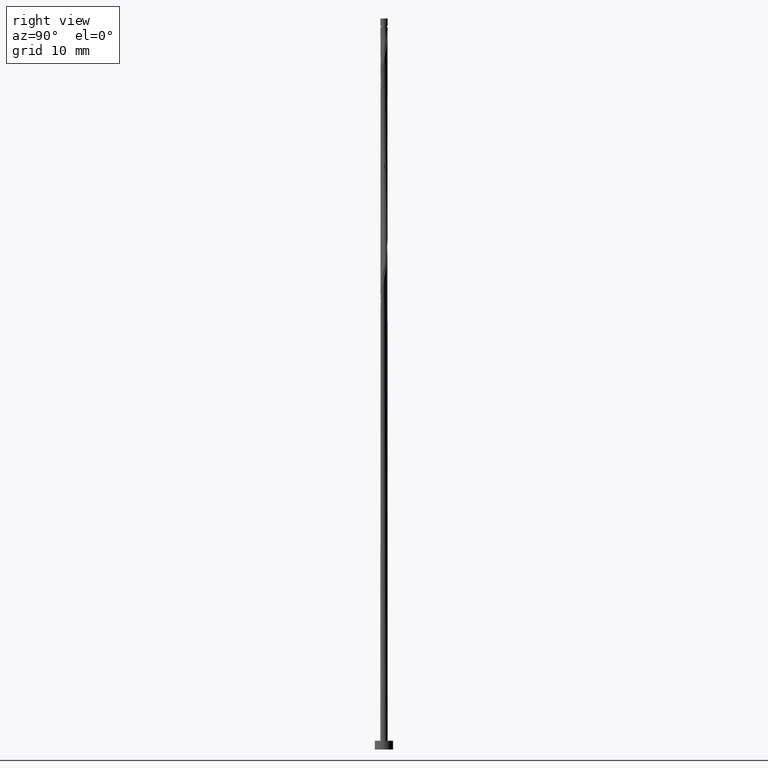
[diagram: clean part render]
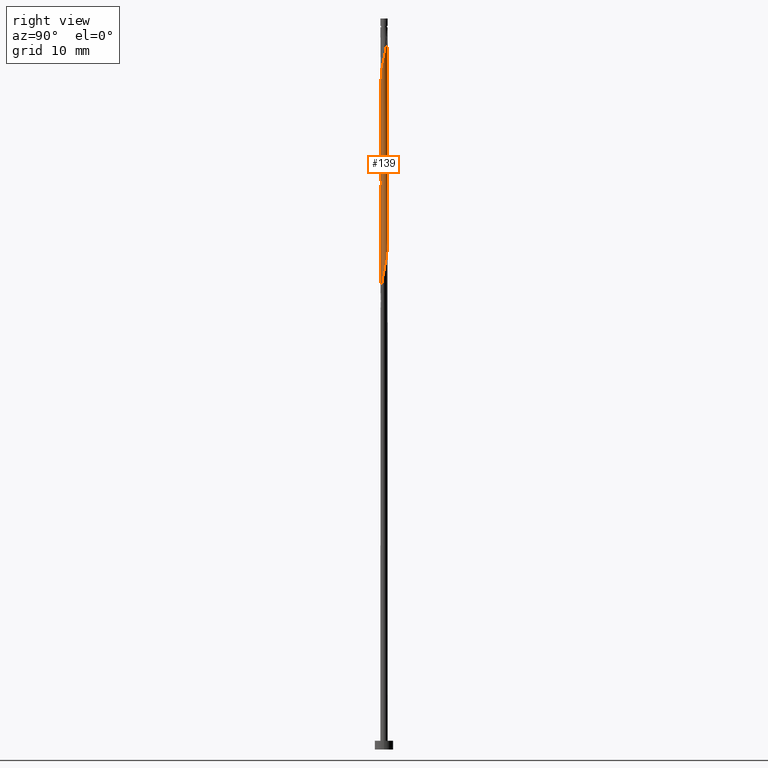
[diagram: same view with one face highlighted and labeled with its STEP entity id]
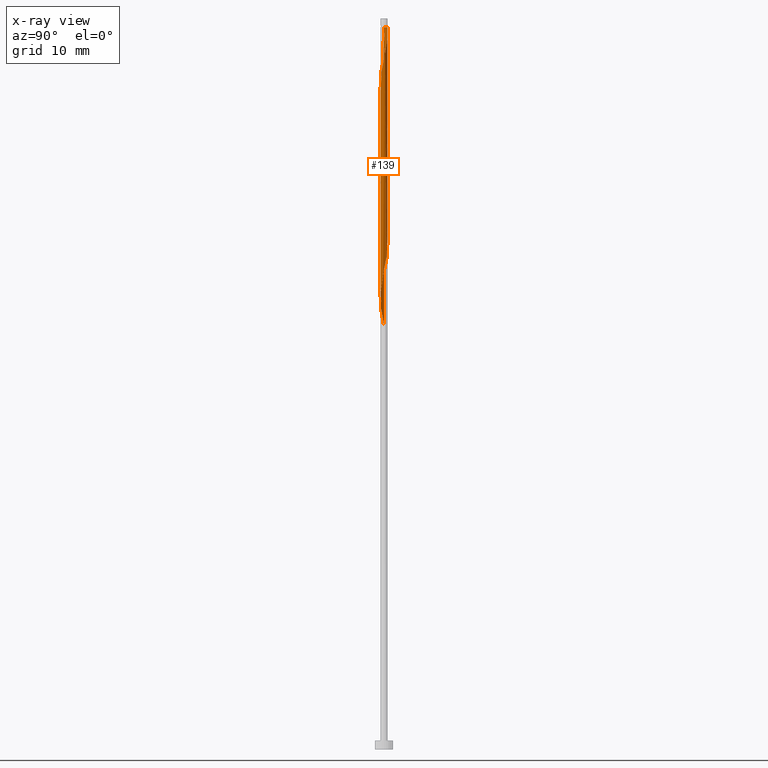
[diagram: x-ray of the same camera — body ghosted, the highlighted face saturated]
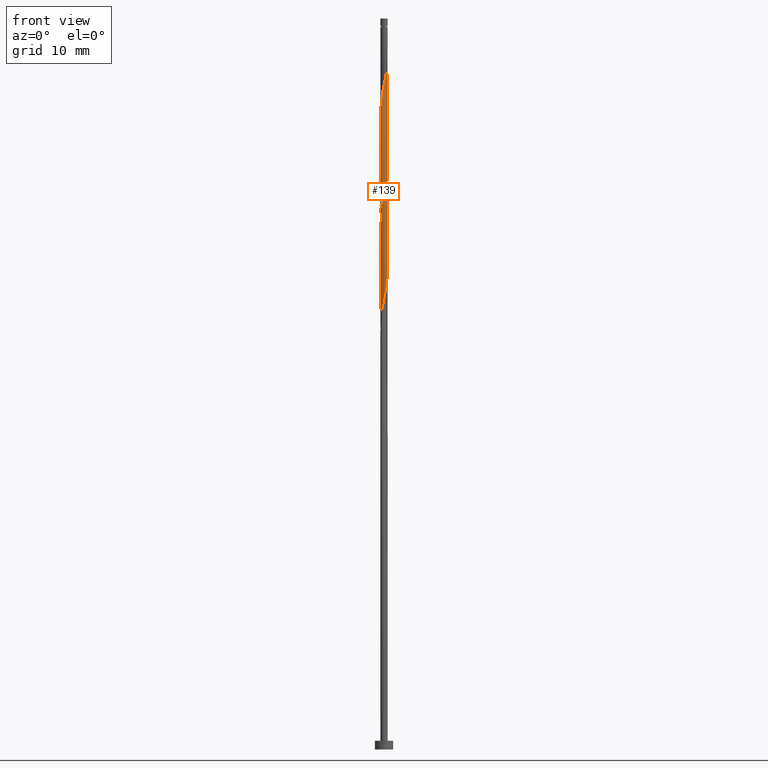
[diagram: same view with one face highlighted and labeled with its STEP entity id]
A machine part, right view. The second image highlights one B-rep face of the part: STEP entity #139.
The next image is the same camera in x-ray: the body ghosted, the highlighted face saturated — about 0% of this face is hidden behind the body in this view.
A second angle (front view) of the same face is appended — the face is thin or edge-on in the first view.
In plain terms, the highlighted cylindrical surface (bore or boss wall) has radius 0.5 mm, axis along (-0, -0, -1).
Its self-contained STEP definition (entity closure, byte-faithful):
#5 = VECTOR ( 'NONE', #58, 1000.000000000000000 ) ;
#16 = ORIENTED_EDGE ( 'NONE', *, *, #212, .F. ) ;
#36 = CARTESIAN_POINT ( 'NONE',  ( 0.09949874371066202983, 0.4900000000000007683, 83.79999999999998295 ) ) ;
#55 = CARTESIAN_POINT ( 'NONE',  ( -0.4975590398240160028, -0.1010336722130054932, 87.55000000000001137 ) ) ;
#58 = DIRECTION ( 'NONE',  ( -0.000000000000000000, -0.000000000000000000, -1.000000000000000000 ) ) ;
#65 = CYLINDRICAL_SURFACE ( 'NONE', #259, 0.5000000000000000000 ) ;
#79 = DIRECTION ( 'NONE',  ( -0.000000000000000000, -0.000000000000000000, -1.000000000000000000 ) ) ;
#86 = CARTESIAN_POINT ( 'NONE',  ( -0.09949874371066166900, 0.4899999999999998801, 98.79999999999999716 ) ) ;
#88 = CARTESIAN_POINT ( 'NONE',  ( 0.5000000000000006661, 0.08152718591022839467, 80.91469696061896855 ) ) ;
#89 = VERTEX_POINT ( 'NONE', #86 ) ;
#93 = VERTEX_POINT ( 'NONE', #1233 ) ;
#97 = CARTESIAN_POINT ( 'NONE',  ( -0.5000000000000006661, 1.559254633332027816E-16, 88.02776939948988399 ) ) ;
#116 = EDGE_CURVE ( 'NONE', #227, #89, #484, .T. ) ;
#139 = ADVANCED_FACE ( 'NONE', ( #1140 ), #65, .T. ) ;
#141 = VERTEX_POINT ( 'NONE', #97 ) ;
#148 = CARTESIAN_POINT ( 'NONE',  ( 0.5000000000000007772, 2.959782747103310096E-16, 80.52776939948985557 ) ) ;
#153 = CARTESIAN_POINT ( 'NONE',  ( 0.1858989642578097734, -0.4724556869372145695, 91.71666666666665435 ) ) ;
#154 = CARTESIAN_POINT ( 'NONE',  ( 0.4329970070769386670, -0.2651158103430559243, 79.21666666666665435 ) ) ;
#167 = CARTESIAN_POINT ( 'NONE',  ( 0.2387454690295328086, -0.4393183367648896831, 62.96666666666668277 ) ) ;
#175 = CARTESIAN_POINT ( 'NONE',  ( -0.5000000000000000000, 0.000000000000000000, 100.0000000000000000 ) ) ;
#176 = CARTESIAN_POINT ( 'NONE',  ( -0.5000000000000007772, -9.803696796398973244E-17, 87.07223060051012453 ) ) ;
#179 = ORIENTED_EDGE ( 'NONE', *, *, #240, .F. ) ;
#188 = CARTESIAN_POINT ( 'NONE',  ( 0.2387454690295330029, 0.4393183367648896831, 97.13333333333333997 ) ) ;
#191 = CARTESIAN_POINT ( 'NONE',  ( -0.4460955302404527312, -0.2424285027197316256, 59.21666666666666146 ) ) ;
#196 = DIRECTION ( 'NONE',  ( -1.000000000000000000, 0.000000000000000000, 0.000000000000000000 ) ) ;
#212 = EDGE_CURVE ( 'NONE', #227, #141, #703, .T. ) ;
#226 = CARTESIAN_POINT ( 'NONE',  ( 0.5000000000000007772, 2.959782747103310096E-16, 80.52776939948985557 ) ) ;
#227 = VERTEX_POINT ( 'NONE', #1341 ) ;
#228 = CARTESIAN_POINT ( 'NONE',  ( -0.4998335745014880205, 0.01289952716443853141, 87.96666666666666856 ) ) ;
#240 = EDGE_CURVE ( 'NONE', #93, #817, #1255, .T. ) ;
#243 = CARTESIAN_POINT ( 'NONE',  ( 0.3162091449211504313, -0.3972210690530859067, 78.38333333333332575 ) ) ;
#245 = CARTESIAN_POINT ( 'NONE',  ( 0.1858989642578099122, 0.4724556869372143475, 83.38333333333332575 ) ) ;
#251 = CARTESIAN_POINT ( 'NONE',  ( 0.01309852316351392196, 0.5075443130627870225, 69.21666666666665435 ) ) ;
#259 = AXIS2_PLACEMENT_3D ( 'NONE', #1021, #79, #1050 ) ;
#263 = CARTESIAN_POINT ( 'NONE',  ( -0.4329970070769387780, 0.2651158103430555912, 86.71666666666666856 ) ) ;
#265 = CARTESIAN_POINT ( 'NONE',  ( 0.4460955302404527867, 0.2424285027197315423, 66.71666666666668277 ) ) ;
#274 = CARTESIAN_POINT ( 'NONE',  ( 0.4329970070769386670, -0.2651158103430559243, 64.21666666666665435 ) ) ;
#281 = CARTESIAN_POINT ( 'NONE',  ( 0.5021081091789604267, 0.07523461788412814932, 65.88333333333332575 ) ) ;
#287 = CARTESIAN_POINT ( 'NONE',  ( -0.3362772466861005394, -0.3803819322636881606, 60.04999999999998295 ) ) ;
#290 = CARTESIAN_POINT ( 'NONE',  ( 0.4652780234504774182, 0.1830747412780303895, 95.46666666666666856 ) ) ;
#318 = CARTESIAN_POINT ( 'NONE',  ( 0.3911863884632766353, 0.3114052174917097404, 82.13333333333333997 ) ) ;
#338 = CARTESIAN_POINT ( 'NONE',  ( -0.5000000000000007772, -9.803696796398973244E-17, 87.07223060051012453 ) ) ;
#349 = CARTESIAN_POINT ( 'NONE',  ( -0.2387454690295328918, -0.4393183367648896831, 89.63333333333331154 ) ) ;
#350 = CARTESIAN_POINT ( 'NONE',  ( -0.2387454690295328086, 0.4393183367648896831, 70.46666666666666856 ) ) ;
#357 = ORIENTED_EDGE ( 'NONE', *, *, #1335, .F. ) ;
#358 = CARTESIAN_POINT ( 'NONE',  ( 0.4741018197097065512, -0.1588315603019302691, 93.80000000000001137 ) ) ;
#359 = CARTESIAN_POINT ( 'NONE',  ( 0.09949874371066202983, 0.4900000000000007683, 68.80000000000001137 ) ) ;
#364 = CARTESIAN_POINT ( 'NONE',  ( -0.4652780234504771961, 0.1830747412780305838, 72.13333333333333997 ) ) ;
#368 = CARTESIAN_POINT ( 'NONE',  ( 0.1858989642578099122, 0.4724556869372143475, 68.38333333333333997 ) ) ;
#372 = ORIENTED_EDGE ( 'NONE', *, *, #972, .F. ) ;
#376 = DIRECTION ( 'NONE',  ( -0.000000000000000000, -0.000000000000000000, -1.000000000000000000 ) ) ;
#388 = CARTESIAN_POINT ( 'NONE',  ( 0.5021081091789604267, -0.07523461788412882933, 94.21666666666666856 ) ) ;
#394 = CARTESIAN_POINT ( 'NONE',  ( -0.5000000000000006661, 1.559254633332027816E-16, 88.02776939948988399 ) ) ;
#403 = VERTEX_POINT ( 'NONE', #455 ) ;
#443 = VECTOR ( 'NONE', #505, 1000.000000000000000 ) ;
#445 = CARTESIAN_POINT ( 'NONE',  ( -0.4329970070769387780, 0.2651158103430555912, 71.71666666666664014 ) ) ;
#453 = CARTESIAN_POINT ( 'NONE',  ( 0.3362772466861005394, -0.3803819322636883271, 92.55000000000001137 ) ) ;
#454 = CARTESIAN_POINT ( 'NONE',  ( -0.4460955302404527312, -0.2424285027197316256, 74.21666666666666856 ) ) ;
#455 = CARTESIAN_POINT ( 'NONE',  ( -0.5000000000000006661, -4.855164127740446616E-16, 58.02776939948987689 ) ) ;
#457 = CARTESIAN_POINT ( 'NONE',  ( -0.3746030759990447989, -0.3311684396980705825, 88.79999999999996874 ) ) ;
#459 = CARTESIAN_POINT ( 'NONE',  ( -0.5000000000000000000, 0.000000000000000000, 100.0000000000000000 ) ) ;
#465 = CARTESIAN_POINT ( 'NONE',  ( -0.1858989642578100510, -0.4724556869372142365, 75.88333333333333997 ) ) ;
#471 = CARTESIAN_POINT ( 'NONE',  ( 0.07409163498720061636, -0.4944799587697402687, 62.13333333333331865 ) ) ;
#477 = CARTESIAN_POINT ( 'NONE',  ( 0.1612817931379150194, -0.4814156044766936260, 62.54999999999999716 ) ) ;
#483 = CARTESIAN_POINT ( 'NONE',  ( 0.3362772466861008169, 0.3803819322636879940, 82.54999999999998295 ) ) ;
#484 = CIRCLE ( 'NONE', #855, 0.5000000000000002220 ) ;
#488 = CARTESIAN_POINT ( 'NONE',  ( 0.09949874371066182166, -0.4900000000000008238, 91.30000000000002558 ) ) ;
#500 = CARTESIAN_POINT ( 'NONE',  ( 0.4741018197097064957, 0.1588315603019300470, 66.29999999999999716 ) ) ;
#505 = DIRECTION ( 'NONE',  ( -0.000000000000000000, -0.000000000000000000, -1.000000000000000000 ) ) ;
#514 = CARTESIAN_POINT ( 'NONE',  ( 0.4460955302404527867, 0.2424285027197315423, 81.71666666666664014 ) ) ;
#548 = CARTESIAN_POINT ( 'NONE',  ( -0.2610881054719552674, -0.4264188096004511985, 75.46666666666665435 ) ) ;
#552 = CARTESIAN_POINT ( 'NONE',  ( 0.1612817931379150194, -0.4814156044766936260, 77.55000000000002558 ) ) ;
#557 = CARTESIAN_POINT ( 'NONE',  ( 0.4998335745014880205, 0.01289952716443851580, 94.63333333333335418 ) ) ;
#558 = CARTESIAN_POINT ( 'NONE',  ( -0.3911863884632766353, -0.3114052174917097404, 74.63333333333331154 ) ) ;
#563 = CARTESIAN_POINT ( 'NONE',  ( 0.3911863884632766908, -0.3114052174917099070, 92.96666666666666856 ) ) ;
#564 = CARTESIAN_POINT ( 'NONE',  ( -0.3746030759990446324, 0.3311684396980706935, 71.29999999999999716 ) ) ;
#576 = CARTESIAN_POINT ( 'NONE',  ( -0.5000000000000006661, -4.855164127740446616E-16, 58.02776939948987689 ) ) ;
#587 = DIRECTION ( 'NONE',  ( -0.000000000000000000, -0.000000000000000000, -1.000000000000000000 ) ) ;
#590 = CARTESIAN_POINT ( 'NONE',  ( 0.4460955302404527867, -0.2424285027197316811, 93.38333333333333997 ) ) ;
#601 = CARTESIAN_POINT ( 'NONE',  ( 0.3162091449211504313, -0.3972210690530859067, 63.38333333333333286 ) ) ;
#658 = CARTESIAN_POINT ( 'NONE',  ( 0.07409163498720061636, -0.4944799587697402687, 77.13333333333332575 ) ) ;
#684 = ORIENTED_EDGE ( 'NONE', *, *, #116, .T. ) ;
#703 = LINE ( 'NONE', #175, #1031 ) ;
#706 = CARTESIAN_POINT ( 'NONE',  ( -0.1612817931379152137, -0.4814156044766937370, 90.05000000000002558 ) ) ;
#708 = ORIENTED_EDGE ( 'NONE', *, *, #240, .T. ) ;
#711 = CARTESIAN_POINT ( 'NONE',  ( 0.4329970070769391111, 0.2651158103430553137, 95.88333333333333997 ) ) ;
#713 = CARTESIAN_POINT ( 'NONE',  ( -0.1858989642578100510, -0.4724556869372142365, 60.88333333333333286 ) ) ;
#720 = CARTESIAN_POINT ( 'NONE',  ( 0.4998335745014881315, -0.01289952716443870315, 65.46666666666666856 ) ) ;
#763 = CARTESIAN_POINT ( 'NONE',  ( -0.1612817931379151581, 0.4814156044766936260, 85.04999999999996874 ) ) ;
#772 = CARTESIAN_POINT ( 'NONE',  ( 0.01309852316351374675, -0.5075443130627872446, 90.88333333333333997 ) ) ;
#773 = CARTESIAN_POINT ( 'NONE',  ( -0.1612817931379151581, 0.4814156044766936260, 70.05000000000001137 ) ) ;
#780 = CARTESIAN_POINT ( 'NONE',  ( 0.2610881054719556005, 0.4264188096004509765, 67.96666666666668277 ) ) ;
#784 = CARTESIAN_POINT ( 'NONE',  ( -0.2387454690295328086, 0.4393183367648896831, 85.46666666666665435 ) ) ;
#789 = CARTESIAN_POINT ( 'NONE',  ( 0.3911863884632766353, 0.3114052174917097404, 67.13333333333333997 ) ) ;
#794 = CARTESIAN_POINT ( 'NONE',  ( 0.5000000000000007772, -0.006450837166010383456, 80.49715376295073099 ) ) ;
#796 = CARTESIAN_POINT ( 'NONE',  ( -0.07409163498720063024, 0.4944799587697402687, 84.63333333333332575 ) ) ;
#813 = CARTESIAN_POINT ( 'NONE',  ( -0.09949874371066196044, -0.4900000000000007683, 61.29999999999999716 ) ) ;
#817 = VERTEX_POINT ( 'NONE', #1098 ) ;
#819 = CARTESIAN_POINT ( 'NONE',  ( 0.4975590398240160028, 0.1010336722130053960, 95.04999999999998295 ) ) ;
#820 = CARTESIAN_POINT ( 'NONE',  ( -0.01309852316351412145, -0.5075443130627871335, 61.71666666666667567 ) ) ;
#827 = CARTESIAN_POINT ( 'NONE',  ( 0.1612817931379155190, 0.4814156044766936260, 97.54999999999999716 ) ) ;
#837 =( BOUNDED_CURVE ( )  B_SPLINE_CURVE ( 2, ( #176, #1027, #1240, #55, #1124, #993, #457, #894, #349, #706, #1314, #772, #488, #153, #1105, #453, #563, #590, #358, #388, #557, #819, #290, #711, #996, #1150, #188, #827, #1170, #1185, #1324 ),
 .UNSPECIFIED., .F., .T. ) 
 B_SPLINE_CURVE_WITH_KNOTS ( ( 3, 2, 2, 2, 2, 2, 2, 2, 2, 2, 2, 2, 2, 2, 2, 3 ),
 ( 0.5545248053855292847, 0.5555555555555555802, 0.5694444444444444198, 0.5833333333333332593, 0.5972222222222222099, 0.6111111111111112715, 0.6250000000000001110, 0.6388888888888889506, 0.6527777777777779011, 0.6666666666666668517, 0.6805555555555556912, 0.6944444444444446418, 0.7083333333333334814, 0.7222222222222224319, 0.7361111111111113825, 0.7500000000000002220 ),
 .UNSPECIFIED. ) 
 CURVE ( )  GEOMETRIC_REPRESENTATION_ITEM ( )  RATIONAL_B_SPLINE_CURVE ( ( 0.9071930855141279171, 0.9080659294509754176, 0.9090909090909153889, 0.8952797754656498519, 0.9090909090909153889, 0.8952797754656498519, 0.9090909090909153889, 0.8952797754656498519, 0.9090909090909153889, 0.8952797754656498519, 0.9090909090909153889, 0.8952797754656498519, 0.9090909090909153889, 0.8952797754656498519, 0.9090909090909153889, 0.8952797754656498519, 0.9090909090909153889, 0.8952797754656498519, 0.9090909090909153889, 0.8952797754656498519, 0.9090909090909153889, 0.8952797754656498519, 0.9090909090909153889, 0.8952797754656498519, 0.9090909090909153889, 0.8952797754656498519, 0.9090909090909153889, 0.8952797754656498519, 0.9090909090909153889, 0.8952797754656496299, 0.9090909090909156109 ) ) 
 REPRESENTATION_ITEM ( '' )  );
#855 = AXIS2_PLACEMENT_3D ( 'NONE', #1156, #376, #196 ) ;
#880 = CARTESIAN_POINT ( 'NONE',  ( -0.3162091449211504313, 0.3972210690530858512, 85.88333333333335418 ) ) ;
#885 = CARTESIAN_POINT ( 'NONE',  ( 0.2387454690295328086, -0.4393183367648896831, 77.96666666666666856 ) ) ;
#890 = CARTESIAN_POINT ( 'NONE',  ( 0.3746030759990445214, -0.3311684396980708600, 78.80000000000002558 ) ) ;
#894 = CARTESIAN_POINT ( 'NONE',  ( -0.3162091449211504868, -0.3972210690530860178, 89.21666666666668277 ) ) ;
#895 = CARTESIAN_POINT ( 'NONE',  ( -0.09949874371066196044, -0.4900000000000007683, 76.30000000000001137 ) ) ;
#902 = CARTESIAN_POINT ( 'NONE',  ( 0.4652780234504772516, -0.1830747412780305561, 64.63333333333333997 ) ) ;
#912 = CARTESIAN_POINT ( 'NONE',  ( -0.3911863884632766353, -0.3114052174917097404, 59.63333333333333286 ) ) ;
#940 = EDGE_LOOP ( 'NONE', ( #16, #684, #372, #1141, #357, #179, #708, #1257 ) ) ;
#972 = EDGE_CURVE ( 'NONE', #1130, #89, #837, .T. ) ;
#983 = CARTESIAN_POINT ( 'NONE',  ( -0.4998335745014880205, 0.01289952716443853141, 72.96666666666664014 ) ) ;
#988 = CARTESIAN_POINT ( 'NONE',  ( -0.3362772466861005394, -0.3803819322636881606, 75.05000000000001137 ) ) ;
#993 = CARTESIAN_POINT ( 'NONE',  ( -0.4329970070769388890, -0.2651158103430555912, 88.38333333333331154 ) ) ;
#996 = CARTESIAN_POINT ( 'NONE',  ( 0.3746030759990447989, 0.3311684396980708045, 96.30000000000001137 ) ) ;
#997 = CARTESIAN_POINT ( 'NONE',  ( -0.4975590398240158918, 0.1010336722130055070, 72.54999999999999716 ) ) ;
#1015 = CARTESIAN_POINT ( 'NONE',  ( -0.3746030759990446324, 0.3311684396980706935, 86.29999999999999716 ) ) ;
#1021 = CARTESIAN_POINT ( 'NONE',  ( 0.000000000000000000, 0.000000000000000000, 100.0000000000000000 ) ) ;
#1027 = CARTESIAN_POINT ( 'NONE',  ( -0.5000000000000007772, -0.006450837166011485872, 87.10284623704926332 ) ) ;
#1031 = VECTOR ( 'NONE', #587, 1000.000000000000000 ) ;
#1050 = DIRECTION ( 'NONE',  ( -1.000000000000000000, 0.000000000000000000, 0.000000000000000000 ) ) ;
#1089 = CARTESIAN_POINT ( 'NONE',  ( 0.01309852316351392196, 0.5075443130627870225, 84.21666666666668277 ) ) ;
#1096 = CARTESIAN_POINT ( 'NONE',  ( -0.5021081091789604267, -0.07523461788412846851, 73.38333333333332575 ) ) ;
#1097 = CARTESIAN_POINT ( 'NONE',  ( 0.2610881054719556005, 0.4264188096004509765, 82.96666666666664014 ) ) ;
#1098 = CARTESIAN_POINT ( 'NONE',  ( 0.5000000000000007772, 2.959782747103310096E-16, 80.52776939948985557 ) ) ;
#1103 = CARTESIAN_POINT ( 'NONE',  ( -0.4652780234504771961, 0.1830747412780305838, 87.13333333333333997 ) ) ;
#1105 = CARTESIAN_POINT ( 'NONE',  ( 0.2610881054719552119, -0.4264188096004513095, 92.13333333333335418 ) ) ;
#1106 = LINE ( 'NONE', #459, #5 ) ;
#1114 = CARTESIAN_POINT ( 'NONE',  ( 0.4998335745014881315, -0.01289952716443870315, 80.46666666666661172 ) ) ;
#1124 = CARTESIAN_POINT ( 'NONE',  ( -0.4652780234504773071, -0.1830747412780305006, 87.96666666666666856 ) ) ;
#1130 = VERTEX_POINT ( 'NONE', #338 ) ;
#1140 = FACE_OUTER_BOUND ( 'NONE', #940, .T. ) ;
#1141 = ORIENTED_EDGE ( 'NONE', *, *, #1296, .T. ) ;
#1144 = CARTESIAN_POINT ( 'NONE',  ( -0.4741018197097065512, -0.1588315603019298805, 58.80000000000000426 ) ) ;
#1150 = CARTESIAN_POINT ( 'NONE',  ( 0.3162091449211505423, 0.3972210690530860178, 96.71666666666665435 ) ) ;
#1152 = CARTESIAN_POINT ( 'NONE',  ( 0.3746030759990445214, -0.3311684396980708600, 63.80000000000001137 ) ) ;
#1156 = CARTESIAN_POINT ( 'NONE',  ( 0.000000000000000000, 0.000000000000000000, 98.79999999999999716 ) ) ;
#1170 = CARTESIAN_POINT ( 'NONE',  ( 0.07409163498720100494, 0.4944799587697403798, 97.96666666666666856 ) ) ;
#1185 = CARTESIAN_POINT ( 'NONE',  ( -0.01309852316351531321, 0.5075443130627873556, 98.38333333333332575 ) ) ;
#1189 = CARTESIAN_POINT ( 'NONE',  ( -0.4975590398240158918, 0.1010336722130055070, 87.54999999999999716 ) ) ;
#1195 = CARTESIAN_POINT ( 'NONE',  ( 0.4975590398240158918, -0.1010336722130055764, 80.05000000000002558 ) ) ;
#1197 = EDGE_CURVE ( 'NONE', #141, #817, #1211, .T. ) ;
#1202 = CARTESIAN_POINT ( 'NONE',  ( 0.4652780234504772516, -0.1830747412780305561, 79.63333333333333997 ) ) ;
#1211 =( BOUNDED_CURVE ( )  B_SPLINE_CURVE ( 2, ( #394, #1286, #228, #1189, #1103, #263, #1015, #880, #784, #763, #796, #1089, #36, #245, #1097, #483, #318, #514, #1359, #88, #226 ),
 .UNSPECIFIED., .F., .T. ) 
 B_SPLINE_CURVE_WITH_KNOTS ( ( 3, 2, 2, 2, 2, 2, 2, 2, 2, 2, 3 ),
 ( 0.4295248053855291737, 0.4305555555555555802, 0.4444444444444444198, 0.4583333333333333148, 0.4722222222222222099, 0.4861111111111111049, 0.5000000000000000000, 0.5138888888888888395, 0.5277777777777777901, 0.5416666666666666297, 0.5545248053855290626 ),
 .UNSPECIFIED. ) 
 CURVE ( )  GEOMETRIC_REPRESENTATION_ITEM ( )  RATIONAL_B_SPLINE_CURVE ( ( 0.9071930855141275840, 0.9080659294509750845, 0.9090909090909150558, 0.8952797754656496299, 0.9090909090909150558, 0.8952797754656496299, 0.9090909090909150558, 0.8952797754656496299, 0.9090909090909150558, 0.8952797754656496299, 0.9090909090909150558, 0.8952797754656496299, 0.9090909090909150558, 0.8952797754656496299, 0.9090909090909150558, 0.8952797754656496299, 0.9090909090909150558, 0.8952797754656496299, 0.9090909090909150558, 0.8963047551055897122, 0.9071930855141273620 ) ) 
 REPRESENTATION_ITEM ( '' )  );
#1213 = CARTESIAN_POINT ( 'NONE',  ( -0.3162091449211504313, 0.3972210690530858512, 70.88333333333331154 ) ) ;
#1233 = CARTESIAN_POINT ( 'NONE',  ( 0.5000000000000000000, 6.123233995736766036E-17, 98.79999999999999716 ) ) ;
#1237 = CARTESIAN_POINT ( 'NONE',  ( -0.2610881054719552674, -0.4264188096004511985, 60.46666666666666146 ) ) ;
#1240 = CARTESIAN_POINT ( 'NONE',  ( -0.4998335745014880205, -0.01289952716443847763, 87.13333333333333997 ) ) ;
#1255 = LINE ( 'NONE', #1357, #443 ) ;
#1257 = ORIENTED_EDGE ( 'NONE', *, *, #1197, .F. ) ;
#1286 = CARTESIAN_POINT ( 'NONE',  ( -0.5000000000000006661, 0.006450837166010866576, 87.99715376295075941 ) ) ;
#1296 = EDGE_CURVE ( 'NONE', #1130, #403, #1106, .T. ) ;
#1302 = CARTESIAN_POINT ( 'NONE',  ( -0.01309852316351412145, -0.5075443130627871335, 76.71666666666666856 ) ) ;
#1309 =( BOUNDED_CURVE ( )  B_SPLINE_CURVE ( 2, ( #148, #794, #1114, #1195, #1202, #154, #890, #243, #885, #552, #658, #1302, #895, #465, #548, #988, #558, #454, #1311, #1096, #983, #997, #364, #445, #564, #1213, #350, #773, #1321, #251, #359, #368, #780, #1315, #789, #265, #500, #281, #720, #1339, #902, #274, #1152, #601, #167, #477, #471, #820, #813, #713, #1237, #287, #912, #191, #1144, #1333, #576 ),
 .UNSPECIFIED., .F., .T. ) 
 B_SPLINE_CURVE_WITH_KNOTS ( ( 3, 2, 2, 2, 2, 2, 2, 2, 2, 2, 2, 2, 2, 2, 2, 2, 2, 2, 2, 2, 2, 2, 2, 2, 2, 2, 2, 2, 3 ),
 ( 0.5545248053855290626, 0.5555555555555555802, 0.5694444444444444198, 0.5833333333333333703, 0.5972222222222222099, 0.6111111111111111605, 0.6250000000000000000, 0.6388888888888888395, 0.6527777777777777901, 0.6666666666666666297, 0.6805555555555555802, 0.6944444444444444198, 0.7083333333333333703, 0.7222222222222222099, 0.7361111111111111605, 0.7500000000000000000, 0.7638888888888888395, 0.7777777777777777901, 0.7916666666666666297, 0.8055555555555555802, 0.8194444444444444198, 0.8333333333333333703, 0.8472222222222222099, 0.8611111111111111605, 0.8750000000000000000, 0.8888888888888888395, 0.9027777777777777901, 0.9166666666666666297, 0.9295248053855293957 ),
 .UNSPECIFIED. ) 
 CURVE ( )  GEOMETRIC_REPRESENTATION_ITEM ( )  RATIONAL_B_SPLINE_CURVE ( ( 0.9071930855141273620, 0.9080659294509749735, 0.9090909090909150558, 0.8952797754656496299, 0.9090909090909150558, 0.8952797754656496299, 0.9090909090909150558, 0.8952797754656496299, 0.9090909090909150558, 0.8952797754656496299, 0.9090909090909150558, 0.8952797754656496299, 0.9090909090909150558, 0.8952797754656496299, 0.9090909090909150558, 0.8952797754656496299, 0.9090909090909150558, 0.8952797754656496299, 0.9090909090909150558, 0.8952797754656496299, 0.9090909090909150558, 0.8952797754656496299, 0.9090909090909150558, 0.8952797754656496299, 0.9090909090909150558, 0.8952797754656496299, 0.9090909090909150558, 0.8952797754656496299, 0.9090909090909150558, 0.8952797754656496299, 0.9090909090909150558, 0.8952797754656496299, 0.9090909090909150558, 0.8952797754656496299, 0.9090909090909150558, 0.8952797754656496299, 0.9090909090909150558, 0.8952797754656496299, 0.9090909090909150558, 0.8952797754656496299, 0.9090909090909150558, 0.8952797754656496299, 0.9090909090909150558, 0.8952797754656496299, 0.9090909090909150558, 0.8952797754656496299, 0.9090909090909150558, 0.8952797754656496299, 0.9090909090909150558, 0.8952797754656496299, 0.9090909090909150558, 0.8952797754656496299, 0.9090909090909150558, 0.8952797754656496299, 0.9090909090909150558, 0.8963047551055893791, 0.9071930855141279171 ) ) 
 REPRESENTATION_ITEM ( '' )  );
#1311 = CARTESIAN_POINT ( 'NONE',  ( -0.4741018197097065512, -0.1588315603019298805, 73.79999999999999716 ) ) ;
#1314 = CARTESIAN_POINT ( 'NONE',  ( -0.07409163498720072738, -0.4944799587697403798, 90.46666666666665435 ) ) ;
#1315 = CARTESIAN_POINT ( 'NONE',  ( 0.3362772466861008169, 0.3803819322636879940, 67.54999999999999716 ) ) ;
#1321 = CARTESIAN_POINT ( 'NONE',  ( -0.07409163498720063024, 0.4944799587697402687, 69.63333333333333997 ) ) ;
#1324 = CARTESIAN_POINT ( 'NONE',  ( -0.09949874371066166900, 0.4899999999999998801, 98.80000000000001137 ) ) ;
#1333 = CARTESIAN_POINT ( 'NONE',  ( -0.5000000000000014433, -0.08152718591022664607, 58.41469696061894012 ) ) ;
#1335 = EDGE_CURVE ( 'NONE', #817, #403, #1309, .T. ) ;
#1339 = CARTESIAN_POINT ( 'NONE',  ( 0.4975590398240158918, -0.1010336722130055764, 65.04999999999999716 ) ) ;
#1341 = CARTESIAN_POINT ( 'NONE',  ( -0.5000000000000002220, 0.000000000000000000, 98.79999999999999716 ) ) ;
#1357 = CARTESIAN_POINT ( 'NONE',  ( 0.5000000000000000000, 6.123233995736766036E-17, 100.0000000000000000 ) ) ;
#1359 = CARTESIAN_POINT ( 'NONE',  ( 0.4741018197097064957, 0.1588315603019300470, 81.29999999999999716 ) ) ;